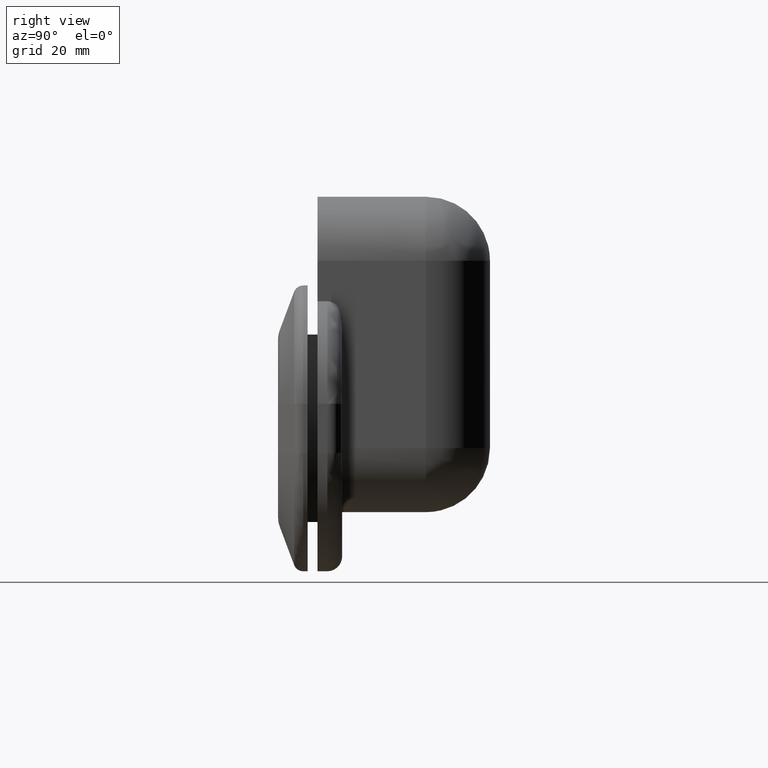
[diagram: clean part render]
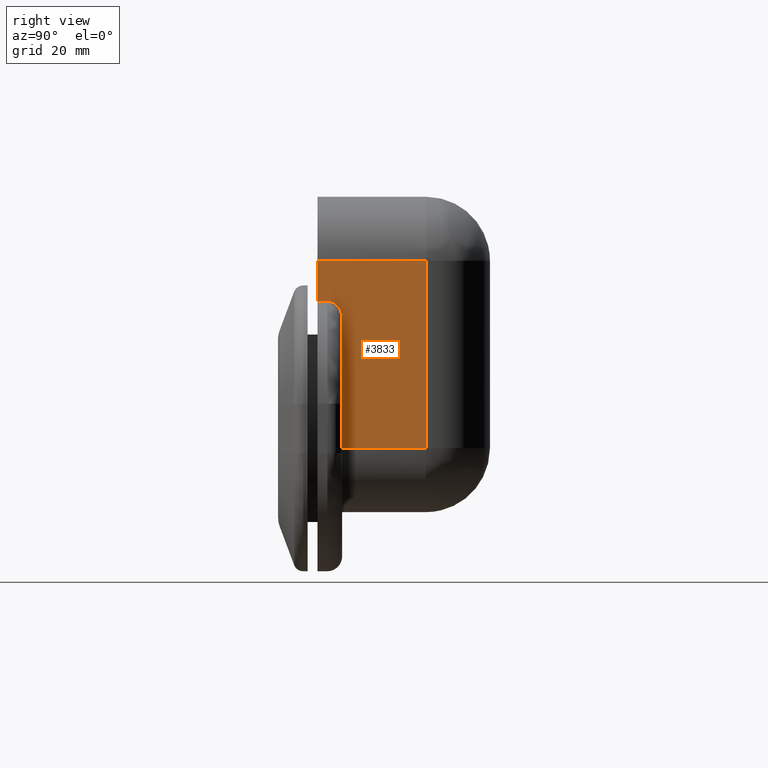
[diagram: same view with one face highlighted and labeled with its STEP entity id]
A machine part, right view. The second image highlights one B-rep face of the part: STEP entity #3833.
In plain terms, the highlighted face is a freeform B-spline surface patch.
Its self-contained STEP definition (entity closure, byte-faithful):
#2100=CARTESIAN_POINT('',(48.0,30.0,34.0));
#2101=VERTEX_POINT('',#2100);
#2202=CARTESIAN_POINT('',(48.0,8.0,34.0));
#2203=VERTEX_POINT('',#2202);
#2219=CARTESIAN_POINT('',(48.0,30.0,34.0));
#2220=CARTESIAN_POINT('',(48.0,8.0,34.0));
#2221=QUASI_UNIFORM_CURVE('',1,(#2219,#2220),.UNSPECIFIED.,.F.,.U.);
#2222=EDGE_CURVE('',#2101,#2203,#2221,.T.);
#2247=CARTESIAN_POINT('',(48.0,30.0,-3.999999999999910));
#2248=VERTEX_POINT('',#2247);
#2270=CARTESIAN_POINT('',(48.0,30.0,-3.999999999999910));
#2271=CARTESIAN_POINT('',(48.0,30.0,34.0));
#2272=QUASI_UNIFORM_CURVE('',1,(#2270,#2271),.UNSPECIFIED.,.F.,.U.);
#2273=EDGE_CURVE('',#2248,#2101,#2272,.T.);
#2423=CARTESIAN_POINT('',(48.0,13.0,-3.999999999999915));
#2424=VERTEX_POINT('',#2423);
#2425=CARTESIAN_POINT('',(48.0,13.0,-3.999999999999915));
#2426=CARTESIAN_POINT('',(48.0,30.0,-3.999999999999910));
#2427=QUASI_UNIFORM_CURVE('',1,(#2425,#2426),.UNSPECIFIED.,.F.,.U.);
#2428=EDGE_CURVE('',#2424,#2248,#2427,.T.);
#2595=CARTESIAN_POINT('',(48.0,10.0,25.784609690826500));
#2596=VERTEX_POINT('',#2595);
#2597=CARTESIAN_POINT('',(48.0,13.0,22.233687939614050));
#2598=VERTEX_POINT('',#2597);
#2599=CARTESIAN_POINT('',(48.0,10.0,25.784609690826500));
#2600=CARTESIAN_POINT('',(48.000000000000007,10.217402698041850,25.784609690826500));
#2601=CARTESIAN_POINT('',(47.999999999999993,10.430069896846140,25.757658792674789));
#2602=CARTESIAN_POINT('',(47.999999999999993,10.690315252686659,25.692163821444080));
#2603=CARTESIAN_POINT('',(48.0,10.742081611644061,25.677455842038270));
#2604=CARTESIAN_POINT('',(47.999999999999993,10.845044386516950,25.644796196319650));
#2605=CARTESIAN_POINT('',(47.999999999999993,10.896409919118820,25.626774772416859));
#2606=CARTESIAN_POINT('',(47.999999999999993,11.048008480715090,25.568417725099149));
#2607=CARTESIAN_POINT('',(48.0,11.145895413443480,25.523814160950231));
#2608=CARTESIAN_POINT('',(47.999999999999993,11.335685819636460,25.423879965729380));
#2609=CARTESIAN_POINT('',(47.999999999999993,11.427587660838601,25.368546408358839));
#2610=CARTESIAN_POINT('',(48.000000000000007,11.561067768738599,25.277706836004590));
#2611=CARTESIAN_POINT('',(48.000000000000007,11.604830823260560,25.246117679842570));
#2612=CARTESIAN_POINT('',(48.000000000000021,11.690898199728620,25.180324170978569));
#2613=CARTESIAN_POINT('',(48.000000000000021,11.733131354143280,25.146162508879058));
#2614=CARTESIAN_POINT('',(47.999999999999993,11.938416677212480,24.970842607516769));
#2615=CARTESIAN_POINT('',(48.0,12.085869753583481,24.814903613204748));
#2616=CARTESIAN_POINT('',(48.000000000000007,12.284226850379341,24.559658410435791));
#2617=CARTESIAN_POINT('',(48.0,12.346733811026359,24.470586570653900));
#2618=CARTESIAN_POINT('',(47.999999999999993,12.462308818259951,24.288382399988290));
#2619=CARTESIAN_POINT('',(48.0,12.515580976261729,24.195060824387770));
#2620=CARTESIAN_POINT('',(47.999999999999993,12.613641884453200,24.004247706437479));
#2621=CARTESIAN_POINT('',(48.0,12.658428699583570,23.906755212921261));
#2622=CARTESIAN_POINT('',(48.000000000000007,12.719472278410890,23.757500043229719));
#2623=CARTESIAN_POINT('',(48.0,12.738795660083090,23.707244744192540));
#2624=CARTESIAN_POINT('',(48.000000000000007,12.775412428145220,23.605736314466601));
#2625=CARTESIAN_POINT('',(47.999999999999993,12.792736406785730,23.554383199453412));
#2626=CARTESIAN_POINT('',(48.000000000000007,12.873903854077170,23.296414393367989));
#2627=CARTESIAN_POINT('',(47.999999999999993,12.921275926084011,23.087310860671700));
#2628=CARTESIAN_POINT('',(48.0,12.984336848546860,22.664181357836679));
#2629=CARTESIAN_POINT('',(47.999999999999993,13.0,22.450151394993679));
#2630=CARTESIAN_POINT('',(48.0,13.0,22.233687939614050));
#2631=B_SPLINE_CURVE_WITH_KNOTS('',3,(#2599,#2600,#2601,#2602,#2603,#2604,#2605,#2606,#2607,#2608,#2609,#2610,#2611,#2612,#2613,#2614,#2615,#2616,#2617,#2618,#2619,#2620,#2621,#2622,#2623,#2624,#2625,#2626,#2627,#2628,#2629,#2630),.UNSPECIFIED.,.F.,.U.,(4,2,2,2,2,2,2,2,2,2,2,2,2,2,2,4),(0.0,0.125000000000002,0.156250000000002,0.187500000000003,0.250000000000003,0.312500000000004,0.343750000000004,0.375000000000005,0.500000000000006,0.562500000000006,0.625000000000006,0.687500000000006,0.718750000000005,0.750000000000005,0.875000000000003,1.0),.UNSPECIFIED.);
#2632=EDGE_CURVE('',#2596,#2598,#2631,.T.);
#3805=CARTESIAN_POINT('',(48.0,6.901100042640270,-5.898099926348538));
#3806=CARTESIAN_POINT('',(48.0,31.098900547445719,-5.898099926348538));
#3807=CARTESIAN_POINT('',(48.0,6.901100042640270,35.898100945588062));
#3808=CARTESIAN_POINT('',(48.0,31.098900547445719,35.898100945588062));
#3809=B_SPLINE_SURFACE_WITH_KNOTS('',1,1,((#3805,#3807),(#3806,#3808)),.UNSPECIFIED.,.F.,.F.,.U.,(2,2),(2,2),(0.0,24.197800504805450),(0.0,41.796200871936591),.UNSPECIFIED.);
#3810=CARTESIAN_POINT('',(48.0,13.0,22.233687939614050));
#3811=CARTESIAN_POINT('',(48.0,13.0,-3.999999999999915));
#3812=QUASI_UNIFORM_CURVE('',1,(#3810,#3811),.UNSPECIFIED.,.F.,.U.);
#3813=EDGE_CURVE('',#2598,#2424,#3812,.T.);
#3814=ORIENTED_EDGE('',*,*,#3813,.T.);
#3815=ORIENTED_EDGE('',*,*,#2428,.T.);
#3816=ORIENTED_EDGE('',*,*,#2273,.T.);
#3817=ORIENTED_EDGE('',*,*,#2222,.T.);
#3818=CARTESIAN_POINT('',(48.0,8.0,25.784609690826500));
#3819=VERTEX_POINT('',#3818);
#3820=CARTESIAN_POINT('',(48.0,8.0,25.784609690826500));
#3821=CARTESIAN_POINT('',(48.0,8.0,34.0));
#3822=QUASI_UNIFORM_CURVE('',1,(#3820,#3821),.UNSPECIFIED.,.F.,.U.);
#3823=EDGE_CURVE('',#3819,#2203,#3822,.T.);
#3824=ORIENTED_EDGE('',*,*,#3823,.F.);
#3825=CARTESIAN_POINT('',(48.0,10.0,25.784609690826500));
#3826=CARTESIAN_POINT('',(48.0,8.0,25.784609690826500));
#3827=QUASI_UNIFORM_CURVE('',1,(#3825,#3826),.UNSPECIFIED.,.F.,.U.);
#3828=EDGE_CURVE('',#2596,#3819,#3827,.T.);
#3829=ORIENTED_EDGE('',*,*,#3828,.F.);
#3830=ORIENTED_EDGE('',*,*,#2632,.T.);
#3831=EDGE_LOOP('',(#3814,#3815,#3816,#3817,#3824,#3829,#3830));
#3832=FACE_OUTER_BOUND('',#3831,.T.);
#3833=ADVANCED_FACE('',(#3832),#3809,.T.);